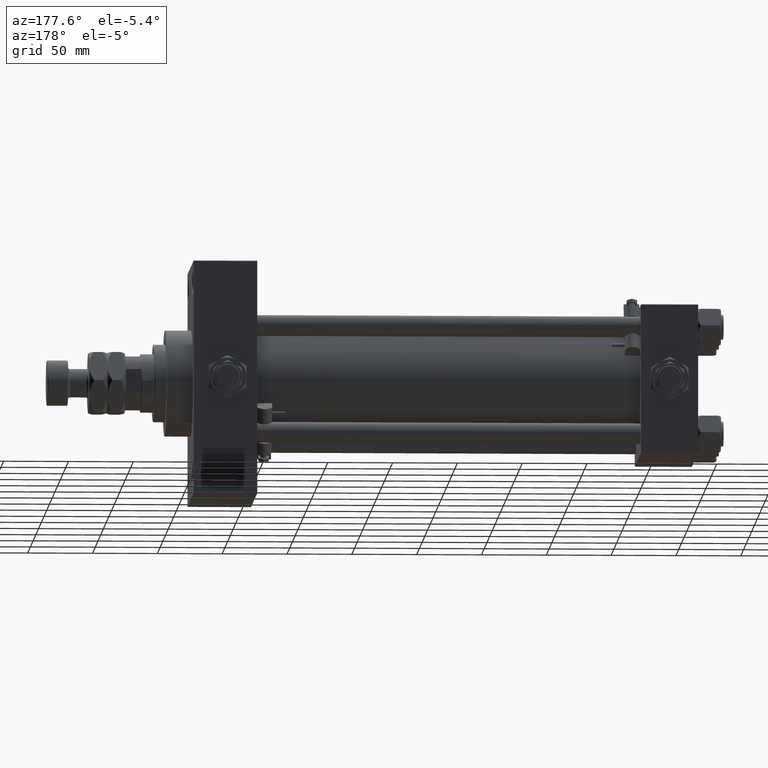
[diagram: clean part render]
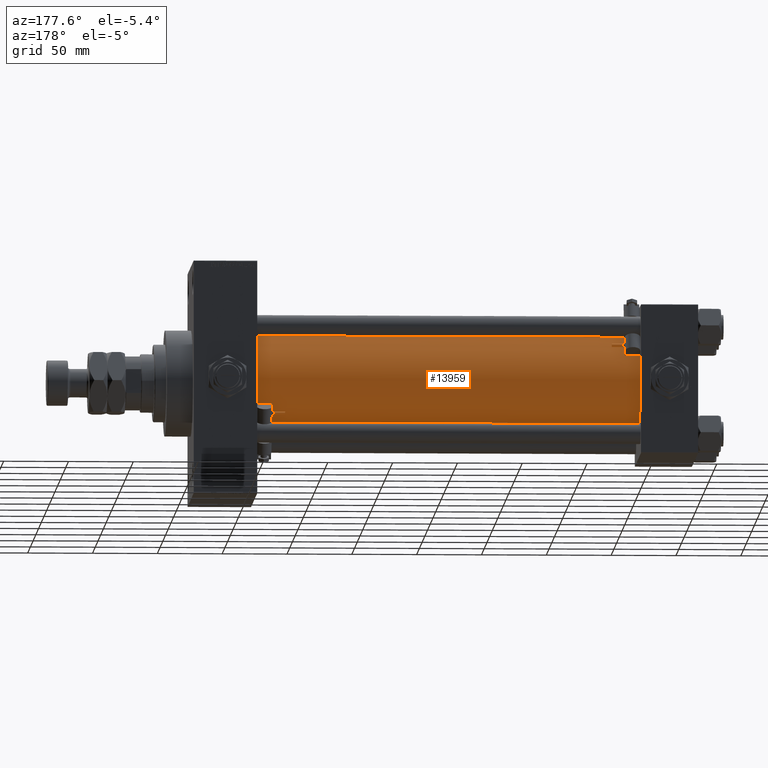
[diagram: same view with one face highlighted and labeled with its STEP entity id]
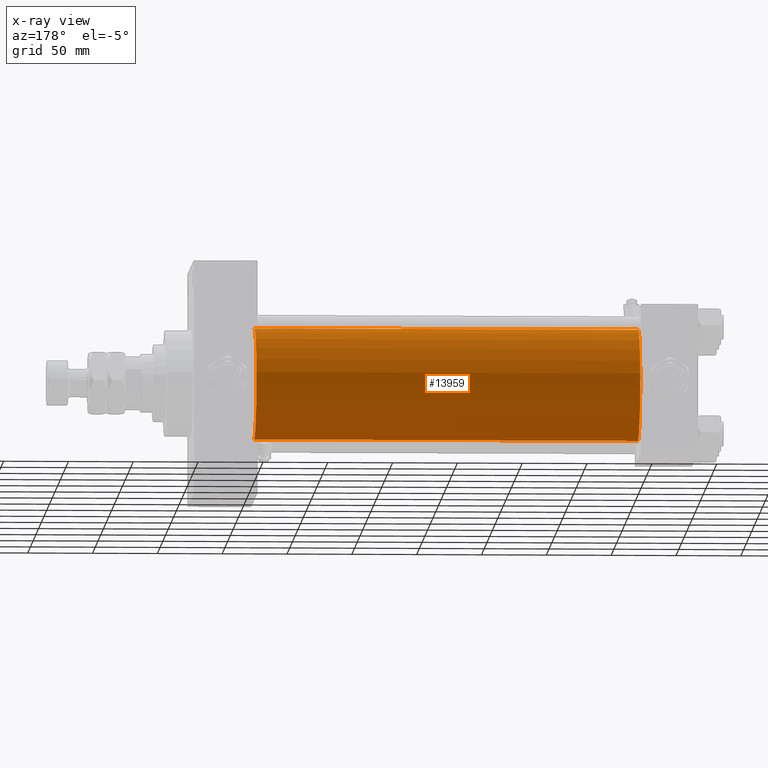
[diagram: x-ray of the same camera — body ghosted, the highlighted face saturated]
A machine part, auxiliary view. The second image highlights one B-rep face of the part: STEP entity #13959.
The next image is the same camera in x-ray: the body ghosted, the highlighted face saturated — about 0% of this face is hidden behind the body in this view.
In plain terms, the highlighted cylindrical surface (partial cylindrical patch) has radius 43 mm, axis along (-1, -0, -0).
Its self-contained STEP definition (entity closure, byte-faithful):
#225 = CARTESIAN_POINT ( 'NONE',  ( 339.9999999999999432, -2.602085213965210642E-15, 43.00000000000000000 ) ) ;
#3277 = AXIS2_PLACEMENT_3D ( 'NONE', #48119, #11959, #32161 ) ;
#3566 = CARTESIAN_POINT ( 'NONE',  ( 339.9999999999999432, 2.663896022368408223E-15, -43.00000000000000000 ) ) ;
#3845 = DIRECTION ( 'NONE',  ( 0.000000000000000000, 0.000000000000000000, 1.000000000000000000 ) ) ;
#6635 = VERTEX_POINT ( 'NONE', #25517 ) ;
#7538 = CIRCLE ( 'NONE', #3277, 43.00000000000000000 ) ;
#7577 = CARTESIAN_POINT ( 'NONE',  ( 43.99999999999998579, -2.602085213965210642E-15, 0.000000000000000000 ) ) ;
#11959 = DIRECTION ( 'NONE',  ( 1.000000000000000000, 0.000000000000000000, 0.000000000000000000 ) ) ;
#12534 = ORIENTED_EDGE ( 'NONE', *, *, #20068, .F. ) ;
#12547 = CARTESIAN_POINT ( 'NONE',  ( 339.9999999999999432, 2.663896022368408223E-15, -43.00000000000000000 ) ) ;
#13701 = CARTESIAN_POINT ( 'NONE',  ( 339.9999999999999432, -2.602085213965210642E-15, 43.00000000000000000 ) ) ;
#13959 = ADVANCED_FACE ( 'NONE', ( #41068 ), #16609, .T. ) ;
#15305 = ORIENTED_EDGE ( 'NONE', *, *, #51172, .T. ) ;
#16609 = CYLINDRICAL_SURFACE ( 'NONE', #16841, 43.00000000000000000 ) ;
#16841 = AXIS2_PLACEMENT_3D ( 'NONE', #44520, #48775, #45307 ) ;
#17206 = EDGE_CURVE ( 'NONE', #42639, #6635, #22860, .T. ) ;
#18608 = EDGE_LOOP ( 'NONE', ( #12534, #15305, #38712, #31101 ) ) ;
#20068 = EDGE_CURVE ( 'NONE', #28164, #35891, #7538, .T. ) ;
#20457 = CARTESIAN_POINT ( 'NONE',  ( 43.99999999999998579, 2.663896022368408223E-15, -43.00000000000000000 ) ) ;
#20640 = DIRECTION ( 'NONE',  ( 1.000000000000000000, -0.000000000000000000, 0.000000000000000000 ) ) ;
#20992 = EDGE_CURVE ( 'NONE', #35891, #6635, #40682, .T. ) ;
#22860 = CIRCLE ( 'NONE', #27101, 43.00000000000000000 ) ;
#25517 = CARTESIAN_POINT ( 'NONE',  ( 43.99999999999998579, -2.602085213965210642E-15, 43.00000000000000000 ) ) ;
#27101 = AXIS2_PLACEMENT_3D ( 'NONE', #7577, #20640, #3845 ) ;
#27519 = LINE ( 'NONE', #3566, #44345 ) ;
#28164 = VERTEX_POINT ( 'NONE', #12547 ) ;
#28976 = DIRECTION ( 'NONE',  ( -1.000000000000000000, -0.000000000000000000, -0.000000000000000000 ) ) ;
#31101 = ORIENTED_EDGE ( 'NONE', *, *, #20992, .F. ) ;
#32161 = DIRECTION ( 'NONE',  ( 0.000000000000000000, 0.000000000000000000, -1.000000000000000000 ) ) ;
#35758 = DIRECTION ( 'NONE',  ( -1.000000000000000000, -0.000000000000000000, -0.000000000000000000 ) ) ;
#35891 = VERTEX_POINT ( 'NONE', #13701 ) ;
#38712 = ORIENTED_EDGE ( 'NONE', *, *, #17206, .T. ) ;
#40682 = LINE ( 'NONE', #225, #50892 ) ;
#41068 = FACE_OUTER_BOUND ( 'NONE', #18608, .T. ) ;
#42639 = VERTEX_POINT ( 'NONE', #20457 ) ;
#44345 = VECTOR ( 'NONE', #35758, 1000.000000000000000 ) ;
#44520 = CARTESIAN_POINT ( 'NONE',  ( 339.9999999999999432, -2.602085213965210642E-15, 0.000000000000000000 ) ) ;
#45307 = DIRECTION ( 'NONE',  ( 0.000000000000000000, 0.000000000000000000, 1.000000000000000000 ) ) ;
#48119 = CARTESIAN_POINT ( 'NONE',  ( 339.9999999999999432, -2.602085213965210642E-15, 0.000000000000000000 ) ) ;
#48775 = DIRECTION ( 'NONE',  ( -1.000000000000000000, -0.000000000000000000, -0.000000000000000000 ) ) ;
#50892 = VECTOR ( 'NONE', #28976, 1000.000000000000000 ) ;
#51172 = EDGE_CURVE ( 'NONE', #28164, #42639, #27519, .T. ) ;